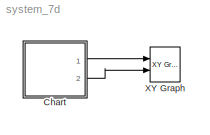
MODEL system_7d
KIND model
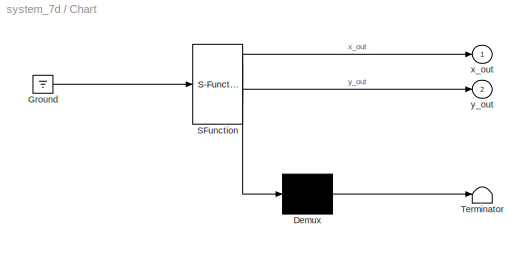
BLOCK [SubSystem] Chart
  ErrorFcn = Stateflow.Translate.translate
  PermitHierarchicalResolution = ExplicitOnly
  Ports = [0, 2]
  RequestExecContextInheritance = off
  SFBlockType = Chart
  SID = 1
  TreatAsAtomicUnit = on
  Variant = off
BLOCK [Demux] Chart/ Demux 
  Outputs = 1
  Ports = [1, 1]
  SID = 1::36
BLOCK [Ground] Chart/ Ground 
  SID = 1::38
BLOCK [S-Function] Chart/ SFunction 
  EnableBusSupport = on
  FunctionName = sf_sfun
  PortCounts = [1 3]
  Ports = [1, 3]
  SFunctionDeploymentMode = off
  SID = 1::35
  Tag = Stateflow S-Function system_7d 1
BLOCK [Terminator] Chart/ Terminator 
  SID = 1::37
BLOCK [Outport] Chart/x_out
  IconDisplay = Port number
  SID = 1::29
BLOCK [Outport] Chart/y_out
  IconDisplay = Port number
  Port = 2
  SID = 1::30
BLOCK [Reference] XY Graph  REF=simulink/Sinks/XY Graph
  Ports = [2]
  SID = 2
  SourceBlock = simulink/Sinks/XY Graph
  SourceType = XY scope.
  st = 0.01
  xmax = 1.2
  xmin = 0
  ymax = 0.5
  ymin = 0.15
LINE Chart/ Demux :1 -> Chart/ Terminator :1
LINE Chart/ Ground :1 -> Chart/ SFunction :1
LINE Chart/ SFunction :1 -> Chart/ Demux :1
LINE Chart/ SFunction :2 -> Chart/x_out:1
LINE Chart/ SFunction :3 -> Chart/y_out:1
LINE Chart:1 -> XY Graph:1
LINE Chart:2 -> XY Graph:2
CHART Chart states=2 transitions=1
  STATE_LABEL 'VO\\ndu:\\nx1_dot = 1.4*x3-0.9*x1;\\nx2_dot = 2.5*x5-1.5*x2;\\nx3_dot = 0.6*x7-0.8*x3*x2;\\nx4_dot = 2.0-1.3*x4*x3;\\nx5_dot = 0.7*x1-1.0*x4*x5;\\nx6_dot = 0.3*x1-3.1*x6;\\nx7_dot = 1.8*x6-1.5*x7*x2;\\nx_out = x5;\\ny_out = x7;'
  STATE_LABEL '@annotation-mode=VO;\\nk=2000;\\ngamma=0;'
